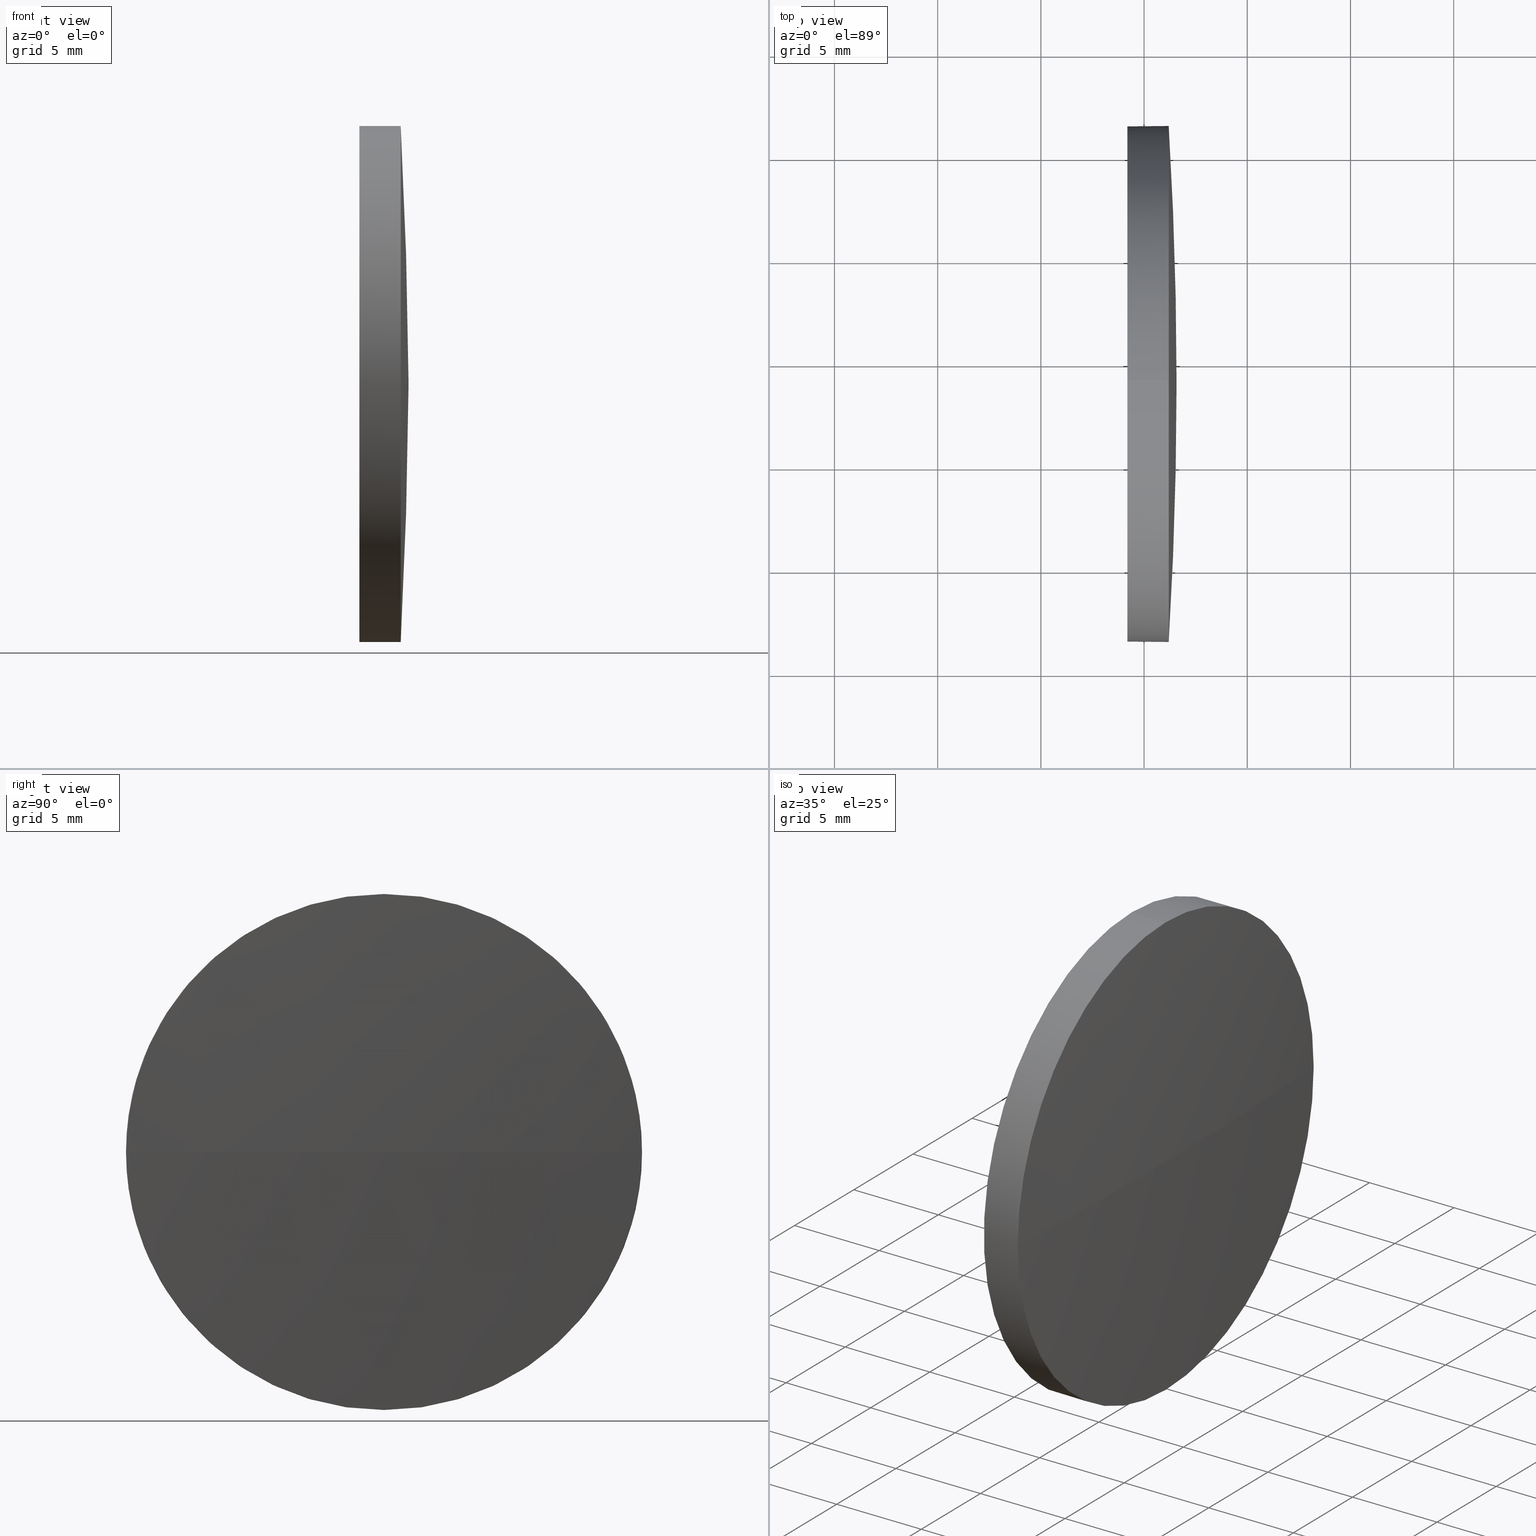
[diagram: canonical four-view strip — front | top / right | iso, engineering-drawing reading convention]
A machine part, canonical four-view strip (front | top / right | iso — engineering-drawing reading convention). The complete STEP part file that produces these views, byte-faithful:
ISO-10303-21;
HEADER;
FILE_DESCRIPTION (( 'STEP AP214' ),
    '1' );
FILE_NAME ('100222.STEP',
    '2019-05-24T03:07:57',
    ( '' ),
    ( '' ),
    'SwSTEP 2.0',
    'SolidWorks 2016',
    '' );
FILE_SCHEMA (( 'AUTOMOTIVE_DESIGN' ));
ENDSEC;

DATA;
#1 = CLOSED_SHELL ( 'NONE', ( #106, #174, #148, #159, #119 ) ) ;
#2 = FILL_AREA_STYLE ('',( #176 ) ) ;
#3 = ORIENTED_EDGE ( 'NONE', *, *, #55, .T. ) ;
#4 = SURFACE_SIDE_STYLE ('',( #172 ) ) ;
#5 = APPLICATION_CONTEXT ( 'automotive_design' ) ;
#6 = CIRCLE ( 'NONE', #85, 12.50000000000000400 ) ;
#7 = CARTESIAN_POINT ( 'NONE',  ( 694.1938871289664800, 53.94199021685585600, -12.50000000000000400 ) ) ;
#8 = ORIENTED_EDGE ( 'NONE', *, *, #15, .T. ) ;
#9 = DIRECTION ( 'NONE',  ( 0.0000000000000000000, 0.0000000000000000000, 1.000000000000000000 ) ) ;
#10 = DIRECTION ( 'NONE',  ( -1.000000000000000000, -0.0000000000000000000, -0.0000000000000000000 ) ) ;
#11 = SURFACE_STYLE_USAGE ( .BOTH. , #19 ) ;
#12 = EDGE_CURVE ( 'NONE', #100, #107, #86, .T. ) ;
#13 = MANIFOLD_SOLID_BREP ( '��ת1', #1 ) ;
#14 = ORIENTED_EDGE ( 'NONE', *, *, #123, .T. ) ;
#15 = EDGE_CURVE ( 'NONE', #156, #111, #44, .T. ) ;
#16 = EDGE_CURVE ( 'NONE', #100, #63, #82, .T. ) ;
#17 = CARTESIAN_POINT ( 'NONE',  ( 692.1647795505293700, 53.94199021685585600, 12.50000000000000400 ) ) ;
#18 = SURFACE_STYLE_USAGE ( .BOTH. , #4 ) ;
#19 = SURFACE_SIDE_STYLE ('',( #24 ) ) ;
#20 = DIRECTION ( 'NONE',  ( 1.000000000000000000, 0.0000000000000000000, 0.0000000000000000000 ) ) ;
#21 = MECHANICAL_DESIGN_GEOMETRIC_PRESENTATION_REPRESENTATION (  '', ( #81 ), #185 ) ;
#22 = DIRECTION ( 'NONE',  ( 0.0000000000000000000, 0.0000000000000000000, 1.000000000000000000 ) ) ;
#23 = CARTESIAN_POINT ( 'NONE',  ( 490.7917818658079900, 53.94199021685555800, 0.0000000000000000000 ) ) ;
#24 = SURFACE_STYLE_FILL_AREA ( #94 ) ;
#25 = EDGE_LOOP ( 'NONE', ( #31, #43 ) ) ;
#26 = CARTESIAN_POINT ( 'NONE',  ( 696.1938871289664800, 41.44199021685576400, -1.530808498934165500E-015 ) ) ;
#27 = AXIS2_PLACEMENT_3D ( 'NONE', #93, #10, #135 ) ;
#28 = ORIENTED_EDGE ( 'NONE', *, *, #12, .T. ) ;
#29 = AXIS2_PLACEMENT_3D ( 'NONE', #87, #61, #152 ) ;
#30 = CIRCLE ( 'NONE', #145, 205.7821052631583700 ) ;
#31 = ORIENTED_EDGE ( 'NONE', *, *, #76, .T. ) ;
#32 = AXIS2_PLACEMENT_3D ( 'NONE', #112, #90, #74 ) ;
#33 = CARTESIAN_POINT ( 'NONE',  ( 696.1938871289664800, 53.94199021685585600, 0.0000000000000000000 ) ) ;
#34 = DIRECTION ( 'NONE',  ( -1.000000000000000000, -0.0000000000000000000, -0.0000000000000000000 ) ) ;
#35 = ORIENTED_EDGE ( 'NONE', *, *, #123, .F. ) ;
#36 = CARTESIAN_POINT ( 'NONE',  ( 696.1938871289664800, 66.44199021685565800, 0.0000000000000000000 ) ) ;
#37 = EDGE_CURVE ( 'NONE', #156, #103, #118, .T. ) ;
#38 = CARTESIAN_POINT ( 'NONE',  ( 0.0000000000000000000, 0.0000000000000000000, 0.0000000000000000000 ) ) ;
#39 = CIRCLE ( 'NONE', #91, 12.50000000000000400 ) ;
#40 = CIRCLE ( 'NONE', #27, 12.50000000000000400 ) ;
#41 = AXIS2_PLACEMENT_3D ( 'NONE', #127, #165, #53 ) ;
#42 = PRODUCT_DEFINITION_CONTEXT ( 'detailed design', #5, 'design' ) ;
#43 = ORIENTED_EDGE ( 'NONE', *, *, #66, .T. ) ;
#44 = LINE ( 'NONE', #17, #124 ) ;
#45 = CARTESIAN_POINT ( 'NONE',  ( 696.1938871289664800, 53.94199021685585600, 0.0000000000000000000 ) ) ;
#46 = UNCERTAINTY_MEASURE_WITH_UNIT (LENGTH_MEASURE( 1.000000000000000100E-005 ), #136, 'distance_accuracy_value', 'NONE');
#47 = DIRECTION ( 'NONE',  ( -0.0000000000000000000, 0.0000000000000000000, -1.000000000000000000 ) ) ;
#48 = DIRECTION ( 'NONE',  ( 0.0000000000000000000, 0.0000000000000000000, 1.000000000000000000 ) ) ;
#49 = DIRECTION ( 'NONE',  ( 1.000000000000000000, 0.0000000000000000000, 0.0000000000000000000 ) ) ;
#50 = AXIS2_PLACEMENT_3D ( 'NONE', #182, #47, #166 ) ;
#51 = DIRECTION ( 'NONE',  ( -1.000000000000000000, -0.0000000000000000000, -0.0000000000000000000 ) ) ;
#52 =( NAMED_UNIT ( * ) SI_UNIT ( $, .STERADIAN. ) SOLID_ANGLE_UNIT ( ) );
#53 = DIRECTION ( 'NONE',  ( 0.0000000000000000000, 1.000000000000000000, 0.0000000000000000000 ) ) ;
#54 = SPHERICAL_SURFACE ( 'NONE', #50, 205.7821052631584300 ) ;
#55 = EDGE_CURVE ( 'NONE', #107, #156, #40, .T. ) ;
#56 = AXIS2_PLACEMENT_3D ( 'NONE', #150, #113, #62 ) ;
#57 = ORIENTED_EDGE ( 'NONE', *, *, #16, .T. ) ;
#58 =( LENGTH_UNIT ( ) NAMED_UNIT ( * ) SI_UNIT ( .MILLI., .METRE. ) );
#59 = CARTESIAN_POINT ( 'NONE',  ( 490.7917818658079900, 53.94199021685555800, 0.0000000000000000000 ) ) ;
#60 = AXIS2_PLACEMENT_3D ( 'NONE', #45, #149, #22 ) ;
#61 = DIRECTION ( 'NONE',  ( -1.000000000000000000, -0.0000000000000000000, -0.0000000000000000000 ) ) ;
#62 = DIRECTION ( 'NONE',  ( 0.0000000000000000000, 0.0000000000000000000, 1.000000000000000000 ) ) ;
#63 = VERTEX_POINT ( 'NONE', #7 ) ;
#64 = DIRECTION ( 'NONE',  ( -0.0000000000000000000, 0.0000000000000000000, 1.000000000000000000 ) ) ;
#65 = ORIENTED_EDGE ( 'NONE', *, *, #12, .F. ) ;
#66 = EDGE_CURVE ( 'NONE', #63, #111, #75, .T. ) ;
#67 = ORIENTED_EDGE ( 'NONE', *, *, #37, .F. ) ;
#68 = PRODUCT ( '100222', '100222', '', ( #92 ) ) ;
#69 = EDGE_LOOP ( 'NONE', ( #183, #57, #130, #158, #179 ) ) ;
#70 =( GEOMETRIC_REPRESENTATION_CONTEXT ( 3 ) GLOBAL_UNCERTAINTY_ASSIGNED_CONTEXT ( ( #115 ) ) GLOBAL_UNIT_ASSIGNED_CONTEXT ( ( #108, #98, #169 ) ) REPRESENTATION_CONTEXT ( 'NONE', 'WORKASPACE' ) );
#71 = ORIENTED_EDGE ( 'NONE', *, *, #55, .F. ) ;
#72 = AXIS2_PLACEMENT_3D ( 'NONE', #38, #139, #49 ) ;
#73 = ORIENTED_EDGE ( 'NONE', *, *, #104, .F. ) ;
#74 = DIRECTION ( 'NONE',  ( 0.0000000000000000000, 0.0000000000000000000, -1.000000000000000000 ) ) ;
#75 = CIRCLE ( 'NONE', #129, 12.50000000000000400 ) ;
#76 = EDGE_CURVE ( 'NONE', #111, #63, #6, .T. ) ;
#77 = CARTESIAN_POINT ( 'NONE',  ( 694.1938871289664800, 53.94199021685585600, 0.0000000000000000000 ) ) ;
#78 = APPLICATION_CONTEXT ( 'automotive_design' ) ;
#79 = FILL_AREA_STYLE_COLOUR ( '', #96 ) ;
#80 = EDGE_LOOP ( 'NONE', ( #35, #132, #67, #71 ) ) ;
#81 = STYLED_ITEM ( 'NONE', ( #117 ), #13 ) ;
#82 = LINE ( 'NONE', #109, #154 ) ;
#83 = PRODUCT_DEFINITION ( 'δ֪', '', #99, #42 ) ;
#84 = COLOUR_RGB ( '',1.000000000000000000, 1.000000000000000000, 1.000000000000000000 ) ;
#85 = AXIS2_PLACEMENT_3D ( 'NONE', #77, #34, #48 ) ;
#86 = CIRCLE ( 'NONE', #133, 12.50000000000000400 ) ;
#87 = CARTESIAN_POINT ( 'NONE',  ( 692.1647795505293700, 53.94199021685585600, 0.0000000000000000000 ) ) ;
#88 = CARTESIAN_POINT ( 'NONE',  ( 696.1938871289664800, 53.94199021685585600, 0.0000000000000000000 ) ) ;
#89 = CYLINDRICAL_SURFACE ( 'NONE', #29, 12.50000000000000400 ) ;
#90 = DIRECTION ( 'NONE',  ( 1.000000000000000000, 0.0000000000000000000, 0.0000000000000000000 ) ) ;
#91 = AXIS2_PLACEMENT_3D ( 'NONE', #33, #180, #9 ) ;
#92 = PRODUCT_CONTEXT ( 'NONE', #78, 'mechanical' ) ;
#93 = CARTESIAN_POINT ( 'NONE',  ( 696.1938871289664800, 53.94199021685585600, 0.0000000000000000000 ) ) ;
#94 = FILL_AREA_STYLE ('',( #79 ) ) ;
#95 = APPLICATION_PROTOCOL_DEFINITION ( 'draft international standard', 'automotive_design', 1998, #78 ) ;
#96 = COLOUR_RGB ( '',1.000000000000000000, 1.000000000000000000, 1.000000000000000000 ) ;
#97 = VERTEX_POINT ( 'NONE', #164 ) ;
#98 =( NAMED_UNIT ( * ) PLANE_ANGLE_UNIT ( ) SI_UNIT ( $, .RADIAN. ) );
#99 = PRODUCT_DEFINITION_FORMATION_WITH_SPECIFIED_SOURCE ( '�κ�', '', #68, .NOT_KNOWN. ) ;
#100 = VERTEX_POINT ( 'NONE', #126 ) ;
#101 = SHAPE_DEFINITION_REPRESENTATION ( #142, #173 ) ;
#102 = STYLED_ITEM ( 'NONE', ( #171 ), #173 ) ;
#103 = VERTEX_POINT ( 'NONE', #36 ) ;
#104 = EDGE_CURVE ( 'NONE', #97, #103, #30, .T. ) ;
#105 =( NAMED_UNIT ( * ) PLANE_ANGLE_UNIT ( ) SI_UNIT ( $, .RADIAN. ) );
#106 = ADVANCED_FACE ( 'NONE', ( #122 ), #89, .T. ) ;
#107 = VERTEX_POINT ( 'NONE', #26 ) ;
#108 =( LENGTH_UNIT ( ) NAMED_UNIT ( * ) SI_UNIT ( .MILLI., .METRE. ) );
#109 = CARTESIAN_POINT ( 'NONE',  ( 692.1647795505293700, 53.94199021685585600, -12.50000000000000400 ) ) ;
#110 = DIRECTION ( 'NONE',  ( 0.0000000000000000000, 1.224646799147353200E-016, -1.000000000000000000 ) ) ;
#111 = VERTEX_POINT ( 'NONE', #125 ) ;
#112 = CARTESIAN_POINT ( 'NONE',  ( 694.1938871289664800, 53.94199021685585600, 0.0000000000000000000 ) ) ;
#113 = DIRECTION ( 'NONE',  ( -1.000000000000000000, -0.0000000000000000000, -0.0000000000000000000 ) ) ;
#114 = PRESENTATION_LAYER_ASSIGNMENT (  '', '', ( #102 ) ) ;
#115 = UNCERTAINTY_MEASURE_WITH_UNIT (LENGTH_MEASURE( 1.000000000000000100E-005 ), #108, 'distance_accuracy_value', 'NONE');
#116 = EDGE_CURVE ( 'NONE', #103, #100, #39, .T. ) ;
#117 = PRESENTATION_STYLE_ASSIGNMENT (( #18 ) ) ;
#118 = CIRCLE ( 'NONE', #60, 12.50000000000000400 ) ;
#119 = ADVANCED_FACE ( 'NONE', ( #184 ), #121, .F. ) ;
#120 = DIRECTION ( 'NONE',  ( -1.000000000000000000, -0.0000000000000000000, -0.0000000000000000000 ) ) ;
#121 = PLANE ( 'NONE',  #32 ) ;
#122 = FACE_OUTER_BOUND ( 'NONE', #69, .T. ) ;
#123 = EDGE_CURVE ( 'NONE', #97, #107, #167, .T. ) ;
#124 = VECTOR ( 'NONE', #120, 1000.000000000000000 ) ;
#125 = CARTESIAN_POINT ( 'NONE',  ( 694.1938871289664800, 53.94199021685585600, 12.50000000000000400 ) ) ;
#126 = CARTESIAN_POINT ( 'NONE',  ( 696.1938871289664800, 53.94199021685585600, -12.50000000000000400 ) ) ;
#127 = CARTESIAN_POINT ( 'NONE',  ( 490.7917818658079900, 53.94199021685555800, 0.0000000000000000000 ) ) ;
#128 =( NAMED_UNIT ( * ) PLANE_ANGLE_UNIT ( ) SI_UNIT ( $, .RADIAN. ) );
#129 = AXIS2_PLACEMENT_3D ( 'NONE', #137, #51, #151 ) ;
#130 = ORIENTED_EDGE ( 'NONE', *, *, #76, .F. ) ;
#131 = AXIS2_PLACEMENT_3D ( 'NONE', #59, #110, #161 ) ;
#132 = ORIENTED_EDGE ( 'NONE', *, *, #104, .T. ) ;
#133 = AXIS2_PLACEMENT_3D ( 'NONE', #88, #146, #147 ) ;
#134 = APPLICATION_PROTOCOL_DEFINITION ( 'draft international standard', 'automotive_design', 1998, #5 ) ;
#135 = DIRECTION ( 'NONE',  ( 0.0000000000000000000, 0.0000000000000000000, 1.000000000000000000 ) ) ;
#136 =( LENGTH_UNIT ( ) NAMED_UNIT ( * ) SI_UNIT ( .MILLI., .METRE. ) );
#137 = CARTESIAN_POINT ( 'NONE',  ( 694.1938871289664800, 53.94199021685585600, 0.0000000000000000000 ) ) ;
#138 = EDGE_LOOP ( 'NONE', ( #73, #14, #65, #144 ) ) ;
#139 = DIRECTION ( 'NONE',  ( 0.0000000000000000000, 0.0000000000000000000, 1.000000000000000000 ) ) ;
#140 = FACE_OUTER_BOUND ( 'NONE', #168, .T. ) ;
#141 = ORIENTED_EDGE ( 'NONE', *, *, #16, .F. ) ;
#142 = PRODUCT_DEFINITION_SHAPE ( 'NONE', 'NONE',  #83 ) ;
#143 = ORIENTED_EDGE ( 'NONE', *, *, #66, .F. ) ;
#144 = ORIENTED_EDGE ( 'NONE', *, *, #116, .F. ) ;
#145 = AXIS2_PLACEMENT_3D ( 'NONE', #23, #64, #20 ) ;
#146 = DIRECTION ( 'NONE',  ( -1.000000000000000000, -0.0000000000000000000, -0.0000000000000000000 ) ) ;
#147 = DIRECTION ( 'NONE',  ( 0.0000000000000000000, 0.0000000000000000000, 1.000000000000000000 ) ) ;
#148 = ADVANCED_FACE ( 'NONE', ( #178 ), #155, .T. ) ;
#149 = DIRECTION ( 'NONE',  ( -1.000000000000000000, -0.0000000000000000000, -0.0000000000000000000 ) ) ;
#150 = CARTESIAN_POINT ( 'NONE',  ( 692.1647795505293700, 53.94199021685585600, 0.0000000000000000000 ) ) ;
#151 = DIRECTION ( 'NONE',  ( 0.0000000000000000000, 0.0000000000000000000, 1.000000000000000000 ) ) ;
#152 = DIRECTION ( 'NONE',  ( 0.0000000000000000000, 0.0000000000000000000, 1.000000000000000000 ) ) ;
#153 = CYLINDRICAL_SURFACE ( 'NONE', #56, 12.50000000000000400 ) ;
#154 = VECTOR ( 'NONE', #163, 1000.000000000000000 ) ;
#155 = SPHERICAL_SURFACE ( 'NONE', #41, 205.7821052631584300 ) ;
#156 = VERTEX_POINT ( 'NONE', #175 ) ;
#157 = MECHANICAL_DESIGN_GEOMETRIC_PRESENTATION_REPRESENTATION (  '', ( #102 ), #177 ) ;
#158 = ORIENTED_EDGE ( 'NONE', *, *, #15, .F. ) ;
#159 = ADVANCED_FACE ( 'NONE', ( #140 ), #153, .T. ) ;
#160 =( NAMED_UNIT ( * ) SI_UNIT ( $, .STERADIAN. ) SOLID_ANGLE_UNIT ( ) );
#161 = DIRECTION ( 'NONE',  ( 0.0000000000000000000, 1.000000000000000000, 1.224646799147353500E-016 ) ) ;
#162 = FACE_OUTER_BOUND ( 'NONE', #138, .T. ) ;
#163 = DIRECTION ( 'NONE',  ( -1.000000000000000000, -0.0000000000000000000, -0.0000000000000000000 ) ) ;
#164 = CARTESIAN_POINT ( 'NONE',  ( 696.5738871289663600, 53.94199021685557200, 0.0000000000000000000 ) ) ;
#165 = DIRECTION ( 'NONE',  ( -0.0000000000000000000, 0.0000000000000000000, -1.000000000000000000 ) ) ;
#166 = DIRECTION ( 'NONE',  ( 0.0000000000000000000, 1.000000000000000000, 0.0000000000000000000 ) ) ;
#167 = CIRCLE ( 'NONE', #131, 205.7821052631584000 ) ;
#168 = EDGE_LOOP ( 'NONE', ( #141, #28, #3, #8, #143 ) ) ;
#169 =( NAMED_UNIT ( * ) SI_UNIT ( $, .STERADIAN. ) SOLID_ANGLE_UNIT ( ) );
#170 = PRESENTATION_LAYER_ASSIGNMENT (  '', '', ( #81 ) ) ;
#171 = PRESENTATION_STYLE_ASSIGNMENT (( #11 ) ) ;
#172 = SURFACE_STYLE_FILL_AREA ( #2 ) ;
#173 = ADVANCED_BREP_SHAPE_REPRESENTATION ( '100222', ( #13, #72 ), #70 ) ;
#174 = ADVANCED_FACE ( 'NONE', ( #162 ), #54, .T. ) ;
#175 = CARTESIAN_POINT ( 'NONE',  ( 696.1938871289664800, 53.94199021685585600, 12.50000000000000400 ) ) ;
#176 = FILL_AREA_STYLE_COLOUR ( '', #84 ) ;
#177 =( GEOMETRIC_REPRESENTATION_CONTEXT ( 3 ) GLOBAL_UNCERTAINTY_ASSIGNED_CONTEXT ( ( #46 ) ) GLOBAL_UNIT_ASSIGNED_CONTEXT ( ( #136, #128, #52 ) ) REPRESENTATION_CONTEXT ( 'NONE', 'WORKASPACE' ) );
#178 = FACE_OUTER_BOUND ( 'NONE', #80, .T. ) ;
#179 = ORIENTED_EDGE ( 'NONE', *, *, #37, .T. ) ;
#180 = DIRECTION ( 'NONE',  ( -1.000000000000000000, -0.0000000000000000000, -0.0000000000000000000 ) ) ;
#181 = PRODUCT_RELATED_PRODUCT_CATEGORY ( 'part', '', ( #68 ) ) ;
#182 = CARTESIAN_POINT ( 'NONE',  ( 490.7917818658079900, 53.94199021685555800, 0.0000000000000000000 ) ) ;
#183 = ORIENTED_EDGE ( 'NONE', *, *, #116, .T. ) ;
#184 = FACE_OUTER_BOUND ( 'NONE', #25, .T. ) ;
#185 =( GEOMETRIC_REPRESENTATION_CONTEXT ( 3 ) GLOBAL_UNCERTAINTY_ASSIGNED_CONTEXT ( ( #186 ) ) GLOBAL_UNIT_ASSIGNED_CONTEXT ( ( #58, #105, #160 ) ) REPRESENTATION_CONTEXT ( 'NONE', 'WORKASPACE' ) );
#186 = UNCERTAINTY_MEASURE_WITH_UNIT (LENGTH_MEASURE( 1.000000000000000100E-005 ), #58, 'distance_accuracy_value', 'NONE');
ENDSEC;
END-ISO-10303-21;
